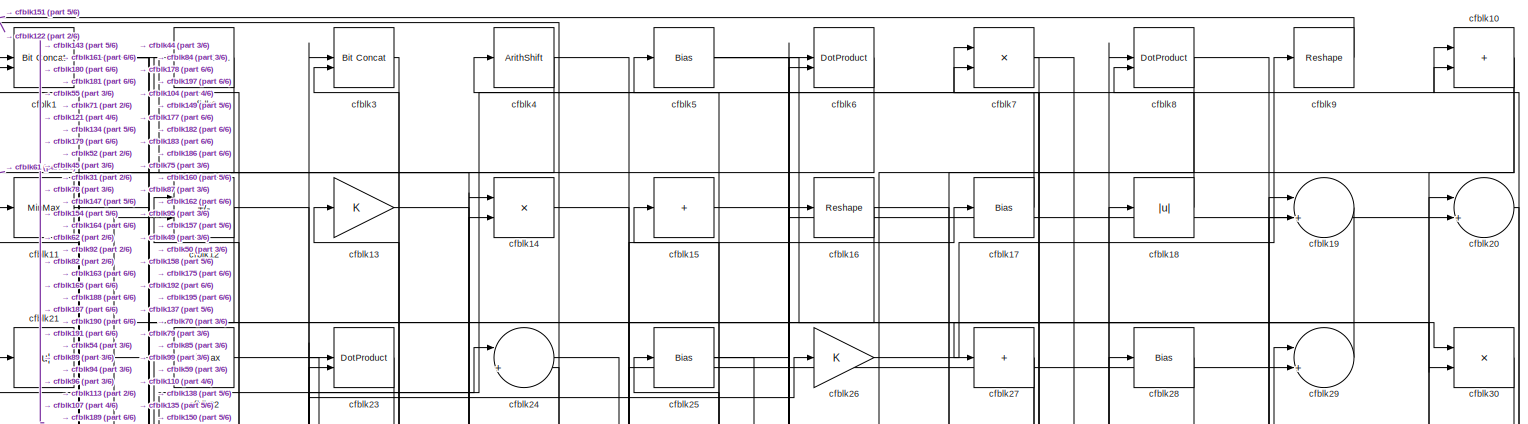
[diagram: root canvas - part 1/6, full width, top band]
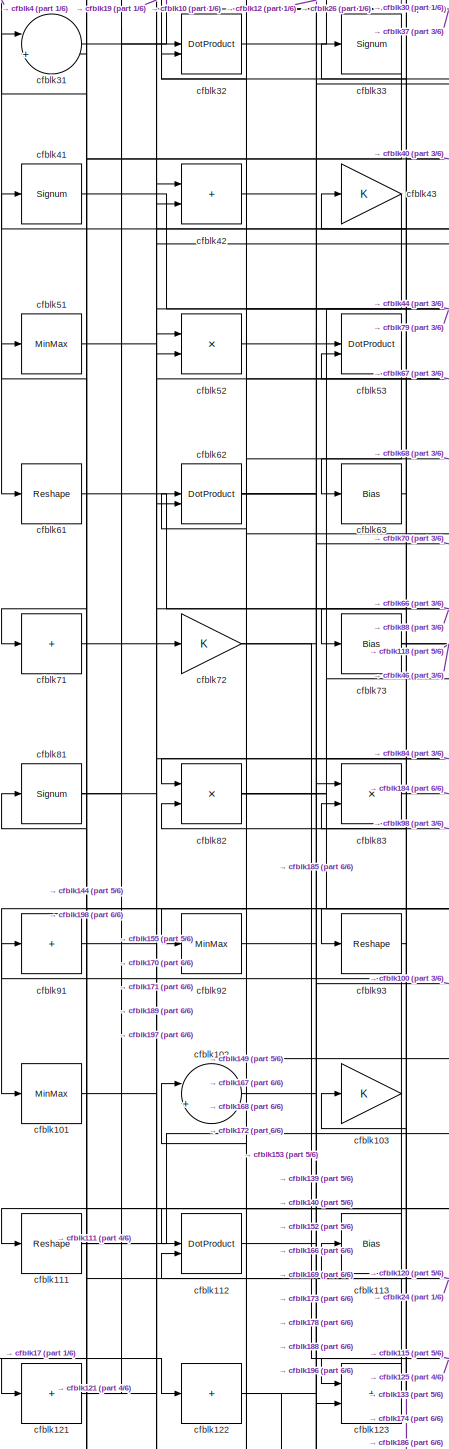
[diagram: root canvas - part 2/6, middle left region]
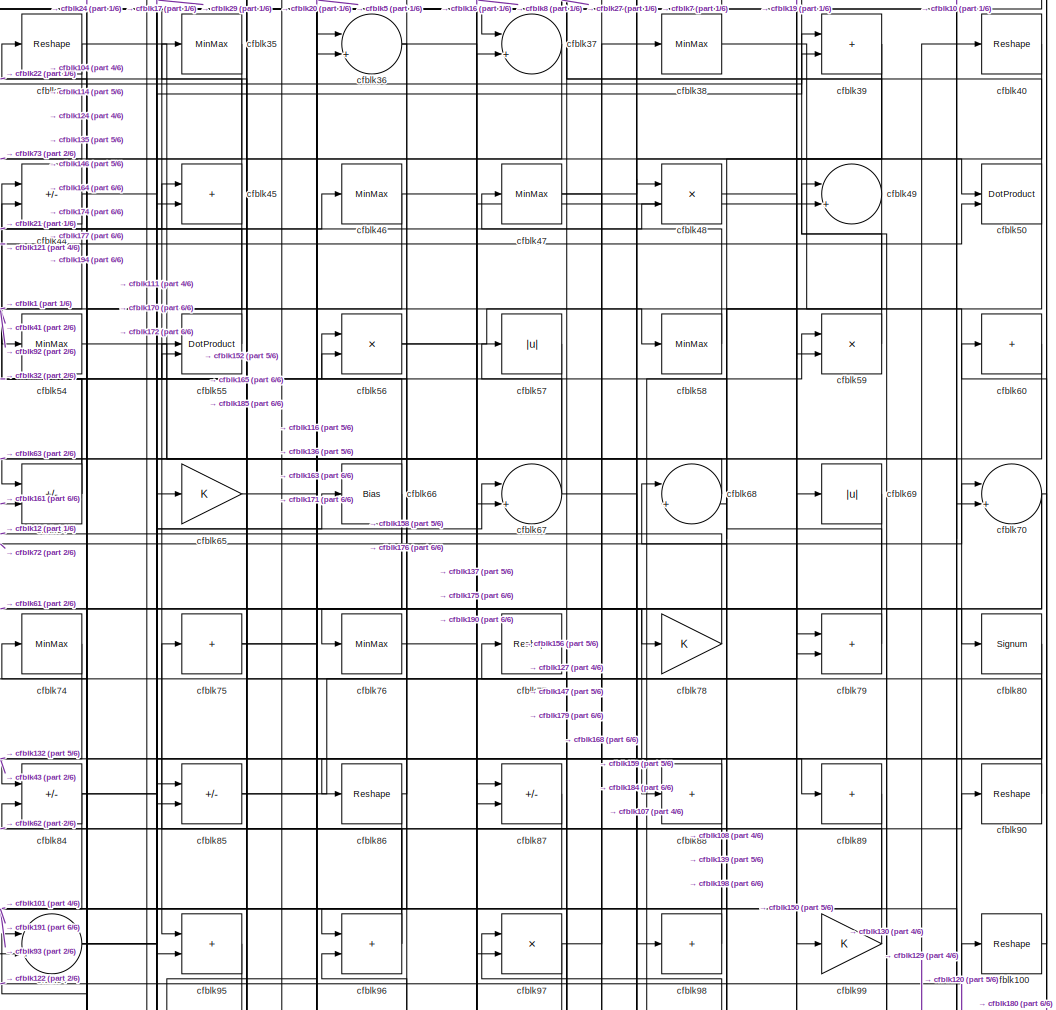
[diagram: root canvas - part 3/6, top center region]
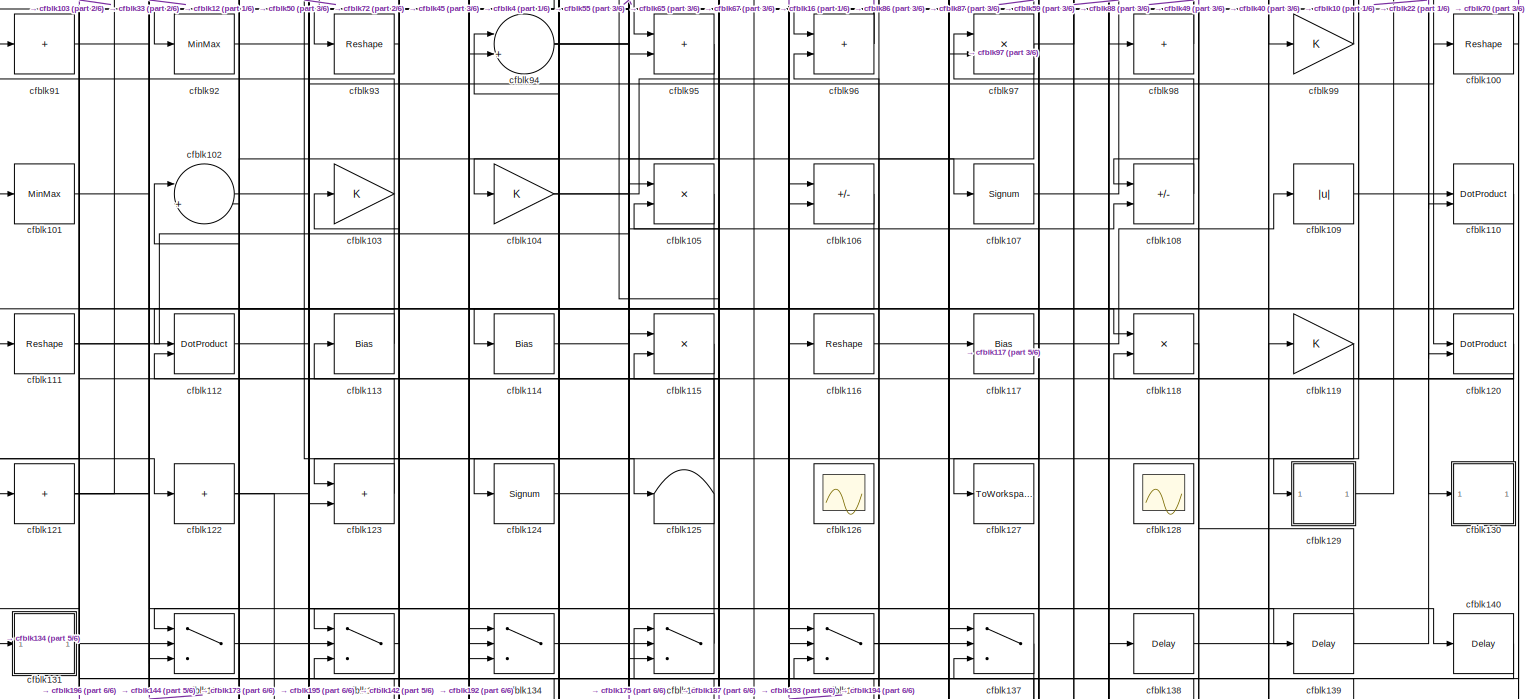
[diagram: root canvas - part 4/6, full width, middle band]
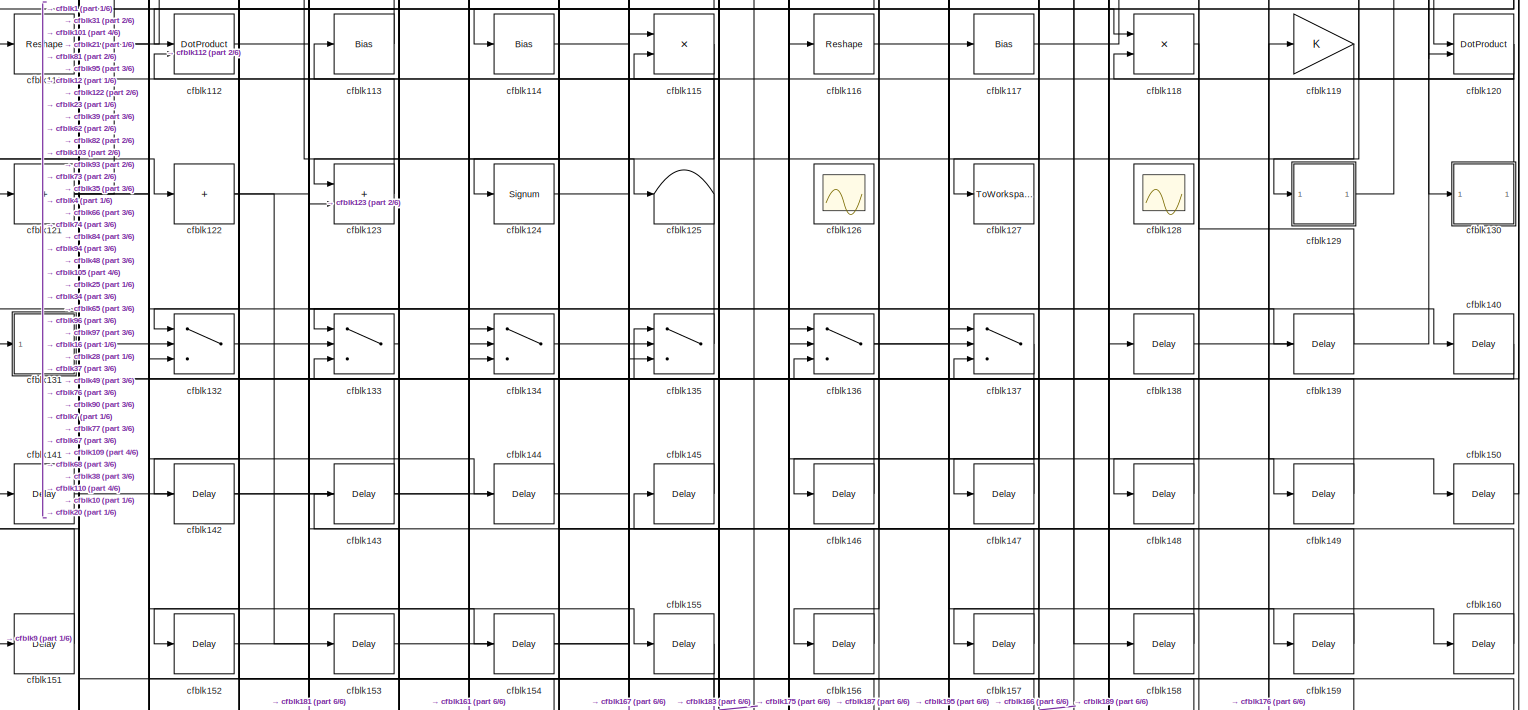
[diagram: root canvas - part 5/6, full width, bottom band]
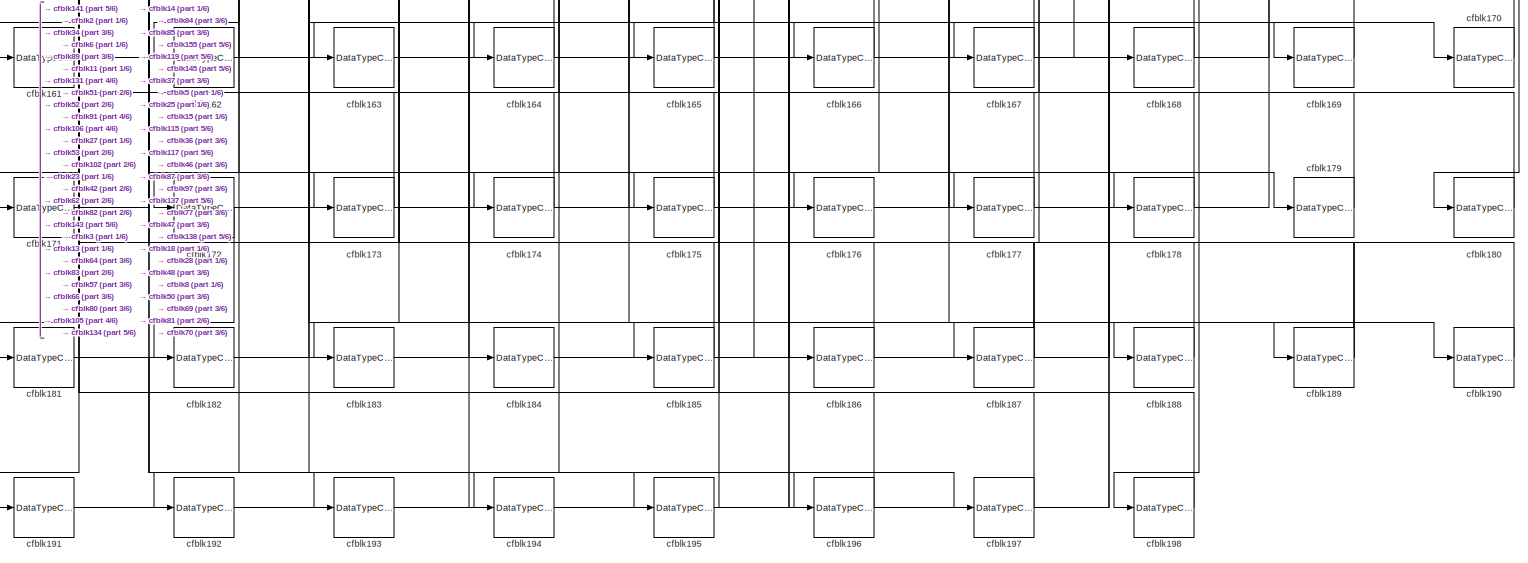
[diagram: root canvas - part 6/6, full width, bottom band]
MODEL slx_1a2bbc0f9b28
KIND model
CONFIG AbsTol = auto
CONFIG EnableMultiTasking = off
CONFIG FixedStep = auto
CONFIG MaxStep = auto
CONFIG MinStep = auto
CONFIG RelTol = 1e-3
CONFIG SampleTimeConstraint = Unconstrained
CONFIG SolverName = VariableStepAuto
CONFIG StartTime = 0.0
CONFIG StopTime = 10.0
BLOCK [Reference] cfblk1  REF=hdlsllib/Logic and Bit
Operations/Bit Concat
  SourceBlock = hdlsllib/Logic and Bit\nOperations/Bit Concat
  SourceType = Bit Concat
BLOCK [Sum] cfblk10
  IconShape = rectangular
BLOCK [Reshape] cfblk100
BLOCK [MinMax] cfblk101
BLOCK [Sum] cfblk102
  Inputs = |++
BLOCK [Gain] cfblk103
BLOCK [Gain] cfblk104
BLOCK [Product] cfblk105
  Inputs = */
  RndMeth = Zero
  SaturateOnIntegerOverflow = on
BLOCK [Sum] cfblk106
  IconShape = rectangular
  Inputs = +-
BLOCK [Signum] cfblk107
BLOCK [Sum] cfblk108
  IconShape = rectangular
  Inputs = +-
BLOCK [Abs] cfblk109
  SaturateOnIntegerOverflow = off
BLOCK [MinMax] cfblk11
BLOCK [DotProduct] cfblk110
  OutDataTypeStr = Inherit: Inherit via internal rule
BLOCK [Reshape] cfblk111
BLOCK [DotProduct] cfblk112
  OutDataTypeStr = Inherit: Inherit via internal rule
BLOCK [Bias] cfblk113
  Bias = 0.0
  SaturateOnIntegerOverflow = off
BLOCK [Bias] cfblk114
  Bias = 0.0
  SaturateOnIntegerOverflow = off
BLOCK [Product] cfblk115
  Inputs = */
  RndMeth = Zero
  SaturateOnIntegerOverflow = on
BLOCK [Reshape] cfblk116
BLOCK [Bias] cfblk117
  Bias = 0.0
  SaturateOnIntegerOverflow = off
BLOCK [Product] cfblk118
  Inputs = */
  RndMeth = Zero
  SaturateOnIntegerOverflow = on
BLOCK [Gain] cfblk119
BLOCK [Sum] cfblk12
  IconShape = rectangular
  Inputs = +-
BLOCK [DotProduct] cfblk120
  OutDataTypeStr = Inherit: Inherit via internal rule
BLOCK [Sum] cfblk121
  IconShape = rectangular
  Inputs = +
BLOCK [Sum] cfblk122
  IconShape = rectangular
  Inputs = +
BLOCK [Sum] cfblk123
  IconShape = rectangular
BLOCK [Signum] cfblk124
BLOCK [Terminator] cfblk125
BLOCK [Scope] cfblk126
  Floating = on
  NumInputPorts = 1
  ScopeSpecificationString = Simulink.scopes.TimeScopeBlockCfg('CurrentConfiguration', extmgr.ConfigurationSet(extmgr.Configuration('Core','General UI',true,'FigureColor',[0.156862745098039 0.156862745098039 0.156862745098039]),extmgr.Configuration('Core','Source UI',true),extmgr.Configuration('Sources','WiredSimulink',true,'DataLoggingVariableName','ScopeData1','DataLoggingSaveFormat','StructureWithTime','DataLoggingLimitDat...<+2713ch>
BLOCK [ToWorkspace] cfblk127
  MaxDataPoints = inf
  SampleTime = -1
  SaveFormat = Timeseries
  VariableName = simout
BLOCK [Scope] cfblk128
  Floating = on
  NumInputPorts = 1
  ScopeSpecificationString = Simulink.scopes.TimeScopeBlockCfg('CurrentConfiguration', extmgr.ConfigurationSet(extmgr.Configuration('Core','General UI',true,'FigureColor',[0.156862745098039 0.156862745098039 0.156862745098039]),extmgr.Configuration('Core','Source UI',true),extmgr.Configuration('Sources','WiredSimulink',true,'DataLoggingVariableName','ScopeData1','DataLoggingSaveFormat','StructureWithTime','DataLoggingLimitDat...<+2713ch>
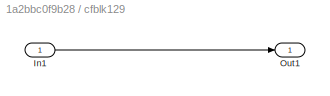
BLOCK [SubSystem] cfblk129
  LibrarySourceBlock = hdlsllib/Ports &\nSubsystems/Subsystem
BLOCK [Inport] cfblk129/In1
BLOCK [Outport] cfblk129/Out1
BLOCK [Gain] cfblk13
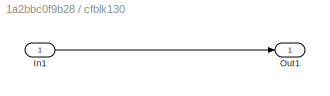
BLOCK [SubSystem] cfblk130
  LibrarySourceBlock = hdlsllib/Ports &\nSubsystems/Subsystem
BLOCK [Inport] cfblk130/In1
BLOCK [Outport] cfblk130/Out1
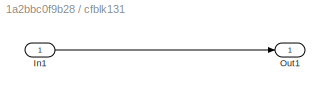
BLOCK [SubSystem] cfblk131
  LibrarySourceBlock = hdlsllib/Ports &\nSubsystems/Subsystem
BLOCK [Inport] cfblk131/In1
BLOCK [Outport] cfblk131/Out1
BLOCK [Switch] cfblk132
  InputSameDT = off
  SaturateOnIntegerOverflow = off
BLOCK [Switch] cfblk133
  InputSameDT = off
  SaturateOnIntegerOverflow = off
BLOCK [Switch] cfblk134
  InputSameDT = off
  SaturateOnIntegerOverflow = off
BLOCK [Switch] cfblk135
  InputSameDT = off
  SaturateOnIntegerOverflow = off
BLOCK [Switch] cfblk136
  InputSameDT = off
  SaturateOnIntegerOverflow = off
BLOCK [Switch] cfblk137
  InputSameDT = off
  SaturateOnIntegerOverflow = off
BLOCK [Delay] cfblk138
  InputPortMap = u0
  SampleTime = 1
BLOCK [Delay] cfblk139
  InputPortMap = u0
  SampleTime = 1
BLOCK [Product] cfblk14
  Inputs = */
  RndMeth = Zero
  SaturateOnIntegerOverflow = on
BLOCK [Delay] cfblk140
  InputPortMap = u0
  SampleTime = 1
BLOCK [Delay] cfblk141
  InputPortMap = u0
  SampleTime = 1
BLOCK [Delay] cfblk142
  InputPortMap = u0
  SampleTime = 1
BLOCK [Delay] cfblk143
  InputPortMap = u0
  SampleTime = 1
BLOCK [Delay] cfblk144
  InputPortMap = u0
  SampleTime = 1
BLOCK [Delay] cfblk145
  InputPortMap = u0
  SampleTime = 1
BLOCK [Delay] cfblk146
  InputPortMap = u0
  SampleTime = 1
BLOCK [Delay] cfblk147
  InputPortMap = u0
  SampleTime = 1
BLOCK [Delay] cfblk148
  InputPortMap = u0
  SampleTime = 1
BLOCK [Delay] cfblk149
  InputPortMap = u0
  SampleTime = 1
BLOCK [Sum] cfblk15
  IconShape = rectangular
  Inputs = +
BLOCK [Delay] cfblk150
  InputPortMap = u0
  SampleTime = 1
BLOCK [Delay] cfblk151
  InputPortMap = u0
  SampleTime = 1
BLOCK [Delay] cfblk152
  InputPortMap = u0
  SampleTime = 1
BLOCK [Delay] cfblk153
  InputPortMap = u0
  SampleTime = 1
BLOCK [Delay] cfblk154
  InputPortMap = u0
  SampleTime = 1
BLOCK [Delay] cfblk155
  InputPortMap = u0
  SampleTime = 1
BLOCK [Delay] cfblk156
  InputPortMap = u0
  SampleTime = 1
BLOCK [Delay] cfblk157
  InputPortMap = u0
  SampleTime = 1
BLOCK [Delay] cfblk158
  InputPortMap = u0
  SampleTime = 1
BLOCK [Delay] cfblk159
  InputPortMap = u0
  SampleTime = 1
BLOCK [Reshape] cfblk16
BLOCK [Delay] cfblk160
  InputPortMap = u0
  SampleTime = 1
BLOCK [DataTypeConversion] cfblk161
  RndMeth = Floor
  SaturateOnIntegerOverflow = off
BLOCK [DataTypeConversion] cfblk162
  OutDataTypeStr = uint8
  RndMeth = Floor
  SaturateOnIntegerOverflow = off
BLOCK [DataTypeConversion] cfblk163
  OutDataTypeStr = uint8
  RndMeth = Floor
  SaturateOnIntegerOverflow = off
BLOCK [DataTypeConversion] cfblk164
  OutDataTypeStr = uint8
  RndMeth = Floor
  SaturateOnIntegerOverflow = off
BLOCK [DataTypeConversion] cfblk165
  OutDataTypeStr = uint8
  RndMeth = Floor
  SaturateOnIntegerOverflow = off
BLOCK [DataTypeConversion] cfblk166
  OutDataTypeStr = uint8
  RndMeth = Floor
  SaturateOnIntegerOverflow = off
BLOCK [DataTypeConversion] cfblk167
  OutDataTypeStr = uint8
  RndMeth = Floor
  SaturateOnIntegerOverflow = off
BLOCK [DataTypeConversion] cfblk168
  OutDataTypeStr = uint8
  RndMeth = Floor
  SaturateOnIntegerOverflow = off
BLOCK [DataTypeConversion] cfblk169
  OutDataTypeStr = uint8
  RndMeth = Floor
  SaturateOnIntegerOverflow = off
BLOCK [Bias] cfblk17
  Bias = 0.0
  SaturateOnIntegerOverflow = off
BLOCK [DataTypeConversion] cfblk170
  OutDataTypeStr = uint8
  RndMeth = Floor
  SaturateOnIntegerOverflow = off
BLOCK [DataTypeConversion] cfblk171
  OutDataTypeStr = uint8
  RndMeth = Floor
  SaturateOnIntegerOverflow = off
BLOCK [DataTypeConversion] cfblk172
  RndMeth = Floor
  SaturateOnIntegerOverflow = off
BLOCK [DataTypeConversion] cfblk173
  OutDataTypeStr = uint8
  RndMeth = Floor
  SaturateOnIntegerOverflow = off
BLOCK [DataTypeConversion] cfblk174
  OutDataTypeStr = uint8
  RndMeth = Floor
  SaturateOnIntegerOverflow = off
BLOCK [DataTypeConversion] cfblk175
  RndMeth = Floor
  SaturateOnIntegerOverflow = off
BLOCK [DataTypeConversion] cfblk176
  OutDataTypeStr = uint8
  RndMeth = Floor
  SaturateOnIntegerOverflow = off
BLOCK [DataTypeConversion] cfblk177
  OutDataTypeStr = uint8
  RndMeth = Floor
  SaturateOnIntegerOverflow = off
BLOCK [DataTypeConversion] cfblk178
  OutDataTypeStr = uint8
  RndMeth = Floor
  SaturateOnIntegerOverflow = off
BLOCK [DataTypeConversion] cfblk179
  OutDataTypeStr = uint8
  RndMeth = Floor
  SaturateOnIntegerOverflow = off
BLOCK [Abs] cfblk18
  SaturateOnIntegerOverflow = off
BLOCK [DataTypeConversion] cfblk180
  OutDataTypeStr = uint8
  RndMeth = Floor
  SaturateOnIntegerOverflow = off
BLOCK [DataTypeConversion] cfblk181
  RndMeth = Floor
  SaturateOnIntegerOverflow = off
BLOCK [DataTypeConversion] cfblk182
  OutDataTypeStr = uint8
  RndMeth = Floor
  SaturateOnIntegerOverflow = off
BLOCK [DataTypeConversion] cfblk183
  OutDataTypeStr = uint8
  RndMeth = Floor
  SaturateOnIntegerOverflow = off
BLOCK [DataTypeConversion] cfblk184
  OutDataTypeStr = uint8
  RndMeth = Floor
  SaturateOnIntegerOverflow = off
BLOCK [DataTypeConversion] cfblk185
  OutDataTypeStr = uint8
  RndMeth = Floor
  SaturateOnIntegerOverflow = off
BLOCK [DataTypeConversion] cfblk186
  OutDataTypeStr = uint8
  RndMeth = Floor
  SaturateOnIntegerOverflow = off
BLOCK [DataTypeConversion] cfblk187
  RndMeth = Floor
  SaturateOnIntegerOverflow = off
BLOCK [DataTypeConversion] cfblk188
  OutDataTypeStr = uint8
  RndMeth = Floor
  SaturateOnIntegerOverflow = off
BLOCK [DataTypeConversion] cfblk189
  RndMeth = Floor
  SaturateOnIntegerOverflow = off
BLOCK [Sum] cfblk19
  Inputs = |++
BLOCK [DataTypeConversion] cfblk190
  OutDataTypeStr = uint8
  RndMeth = Floor
  SaturateOnIntegerOverflow = off
BLOCK [DataTypeConversion] cfblk191
  OutDataTypeStr = uint8
  RndMeth = Floor
  SaturateOnIntegerOverflow = off
BLOCK [DataTypeConversion] cfblk192
  OutDataTypeStr = uint8
  RndMeth = Floor
  SaturateOnIntegerOverflow = off
BLOCK [DataTypeConversion] cfblk193
  OutDataTypeStr = uint8
  RndMeth = Floor
  SaturateOnIntegerOverflow = off
BLOCK [DataTypeConversion] cfblk194
  OutDataTypeStr = uint8
  RndMeth = Floor
  SaturateOnIntegerOverflow = off
BLOCK [DataTypeConversion] cfblk195
  RndMeth = Floor
  SaturateOnIntegerOverflow = off
BLOCK [DataTypeConversion] cfblk196
  OutDataTypeStr = uint8
  RndMeth = Floor
  SaturateOnIntegerOverflow = off
BLOCK [DataTypeConversion] cfblk197
  OutDataTypeStr = uint8
  RndMeth = Floor
  SaturateOnIntegerOverflow = off
BLOCK [DataTypeConversion] cfblk198
  OutDataTypeStr = uint8
  RndMeth = Floor
  SaturateOnIntegerOverflow = off
BLOCK [Reference] cfblk2  REF=simulink/Logic and Bit
Operations/Detect
Decrease
  LibrarySourceBlock = hdlsllib/Logic and Bit\nOperations/Detect\nDecrease
  SourceBlock = simulink/Logic and Bit\nOperations/Detect\nDecrease
  SourceType = Detect Decrease
BLOCK [Sum] cfblk20
  Inputs = |++
BLOCK [Abs] cfblk21
  SaturateOnIntegerOverflow = off
BLOCK [MinMax] cfblk22
BLOCK [DotProduct] cfblk23
  OutDataTypeStr = Inherit: Inherit via internal rule
BLOCK [Sum] cfblk24
  Inputs = |++
BLOCK [Bias] cfblk25
  Bias = 0.0
  SaturateOnIntegerOverflow = off
BLOCK [Gain] cfblk26
BLOCK [Sum] cfblk27
  IconShape = rectangular
  Inputs = +
BLOCK [Bias] cfblk28
  Bias = 0.0
  SaturateOnIntegerOverflow = off
BLOCK [Sum] cfblk29
  Inputs = |++
BLOCK [Reference] cfblk3  REF=hdlsllib/Logic and Bit
Operations/Bit Concat
  SourceBlock = hdlsllib/Logic and Bit\nOperations/Bit Concat
  SourceType = Bit Concat
BLOCK [Product] cfblk30
  Inputs = */
  RndMeth = Zero
  SaturateOnIntegerOverflow = on
BLOCK [Sum] cfblk31
  Inputs = |++
BLOCK [DotProduct] cfblk32
  OutDataTypeStr = Inherit: Inherit via internal rule
BLOCK [Signum] cfblk33
BLOCK [Reshape] cfblk34
BLOCK [MinMax] cfblk35
BLOCK [Sum] cfblk36
  Inputs = |++
BLOCK [Sum] cfblk37
  Inputs = |++
BLOCK [MinMax] cfblk38
BLOCK [Sum] cfblk39
  IconShape = rectangular
BLOCK [ArithShift] cfblk4
  BitShiftNumber = 8
  InputPortMap = u0
BLOCK [Reshape] cfblk40
BLOCK [Signum] cfblk41
BLOCK [Sum] cfblk42
  IconShape = rectangular
BLOCK [Gain] cfblk43
BLOCK [Sum] cfblk44
  IconShape = rectangular
  Inputs = +-
BLOCK [Sum] cfblk45
  IconShape = rectangular
BLOCK [MinMax] cfblk46
BLOCK [MinMax] cfblk47
BLOCK [Product] cfblk48
  Inputs = */
  RndMeth = Zero
  SaturateOnIntegerOverflow = on
BLOCK [Sum] cfblk49
  Inputs = |++
BLOCK [Bias] cfblk5
  Bias = 0.0
  SaturateOnIntegerOverflow = off
BLOCK [DotProduct] cfblk50
  OutDataTypeStr = Inherit: Inherit via internal rule
BLOCK [MinMax] cfblk51
BLOCK [Product] cfblk52
  Inputs = */
  RndMeth = Zero
  SaturateOnIntegerOverflow = on
BLOCK [DotProduct] cfblk53
  OutDataTypeStr = Inherit: Inherit via internal rule
BLOCK [MinMax] cfblk54
BLOCK [DotProduct] cfblk55
  OutDataTypeStr = Inherit: Inherit via internal rule
BLOCK [Product] cfblk56
  Inputs = */
  RndMeth = Zero
  SaturateOnIntegerOverflow = on
BLOCK [Abs] cfblk57
  SaturateOnIntegerOverflow = off
BLOCK [MinMax] cfblk58
BLOCK [Product] cfblk59
  Inputs = */
  RndMeth = Zero
  SaturateOnIntegerOverflow = on
BLOCK [DotProduct] cfblk6
  OutDataTypeStr = Inherit: Inherit via internal rule
BLOCK [Sum] cfblk60
  IconShape = rectangular
  Inputs = +
BLOCK [Reshape] cfblk61
BLOCK [DotProduct] cfblk62
  OutDataTypeStr = Inherit: Inherit via internal rule
BLOCK [Bias] cfblk63
  Bias = 0.0
  SaturateOnIntegerOverflow = off
BLOCK [Sum] cfblk64
  IconShape = rectangular
  Inputs = +-
BLOCK [Gain] cfblk65
BLOCK [Bias] cfblk66
  Bias = 0.0
  SaturateOnIntegerOverflow = off
BLOCK [Sum] cfblk67
  Inputs = |++
BLOCK [Sum] cfblk68
  Inputs = |++
BLOCK [Abs] cfblk69
  SaturateOnIntegerOverflow = off
BLOCK [Product] cfblk7
  Inputs = */
  RndMeth = Zero
  SaturateOnIntegerOverflow = on
BLOCK [Sum] cfblk70
  Inputs = |++
BLOCK [Sum] cfblk71
  IconShape = rectangular
  Inputs = +
BLOCK [Gain] cfblk72
BLOCK [Bias] cfblk73
  Bias = 0.0
  SaturateOnIntegerOverflow = off
BLOCK [MinMax] cfblk74
BLOCK [Sum] cfblk75
  IconShape = rectangular
  Inputs = +
BLOCK [MinMax] cfblk76
BLOCK [Reshape] cfblk77
BLOCK [Gain] cfblk78
BLOCK [Sum] cfblk79
  IconShape = rectangular
BLOCK [DotProduct] cfblk8
  OutDataTypeStr = Inherit: Inherit via internal rule
BLOCK [Signum] cfblk80
BLOCK [Signum] cfblk81
BLOCK [Product] cfblk82
  Inputs = */
  RndMeth = Zero
  SaturateOnIntegerOverflow = on
BLOCK [Product] cfblk83
  Inputs = */
  RndMeth = Zero
  SaturateOnIntegerOverflow = on
BLOCK [Sum] cfblk84
  IconShape = rectangular
  Inputs = +-
BLOCK [Sum] cfblk85
  IconShape = rectangular
  Inputs = +-
BLOCK [Reshape] cfblk86
BLOCK [Sum] cfblk87
  IconShape = rectangular
  Inputs = +-
BLOCK [Sum] cfblk88
  IconShape = rectangular
  Inputs = +
BLOCK [Sum] cfblk89
  IconShape = rectangular
  Inputs = +
BLOCK [Reshape] cfblk9
BLOCK [Reshape] cfblk90
BLOCK [Sum] cfblk91
  IconShape = rectangular
  Inputs = +
BLOCK [MinMax] cfblk92
BLOCK [Reshape] cfblk93
BLOCK [Sum] cfblk94
  Inputs = |++
BLOCK [Sum] cfblk95
  IconShape = rectangular
BLOCK [Sum] cfblk96
  IconShape = rectangular
BLOCK [Product] cfblk97
  Inputs = */
  RndMeth = Zero
  SaturateOnIntegerOverflow = on
BLOCK [Sum] cfblk98
  IconShape = rectangular
  Inputs = +
BLOCK [Gain] cfblk99
LINE cfblk100:1 -> cfblk60:1
LINE cfblk101:1 -> cfblk144:1
LINE cfblk102:1 -> cfblk166:1
NET cfblk103:1 -> cfblk121:1, cfblk31:2
NET cfblk104:1 -> cfblk108:2, cfblk16:1
LINE cfblk105:1 -> cfblk142:1
LINE cfblk106:1 -> cfblk192:1
LINE cfblk107:1 -> cfblk59:1
LINE cfblk108:1 -> cfblk97:1
LINE cfblk109:1 -> cfblk130:1
NET cfblk10:1 -> cfblk110:2, cfblk96:1
NET cfblk110:1 -> cfblk131:1, cfblk134:3
NET cfblk111:1 -> cfblk55:2, cfblk65:1
LINE cfblk112:1 -> cfblk140:1
LINE cfblk113:1 -> cfblk112:1
LINE cfblk114:1 -> cfblk48:2
LINE cfblk115:1 -> cfblk123:1
LINE cfblk116:1 -> cfblk37:2
LINE cfblk117:1 -> cfblk109:1
LINE cfblk118:1 -> cfblk148:1
LINE cfblk119:1 -> cfblk175:1
LINE cfblk11:1 -> cfblk179:1
NET cfblk120:1 -> cfblk112:2, cfblk118:2
NET cfblk121:1 -> cfblk12:2, cfblk45:1, cfblk50:2
NET cfblk122:1 -> cfblk100:1, cfblk153:1
LINE cfblk123:1 -> cfblk41:1
LINE cfblk124:1 -> cfblk67:1
LINE cfblk129/In1:1 -> cfblk129/Out1:1
LINE cfblk129:1 -> cfblk40:1
NET cfblk12:1 -> cfblk154:1, cfblk71:1
LINE cfblk130/In1:1 -> cfblk130/Out1:1
LINE cfblk130:1 -> cfblk49:1
LINE cfblk131/In1:1 -> cfblk131/Out1:1
LINE cfblk131:1 -> cfblk173:1
LINE cfblk132:1 -> cfblk39:1
LINE cfblk133:1 -> cfblk103:1
LINE cfblk134:1 -> cfblk167:1
LINE cfblk135:1 -> cfblk74:1
NET cfblk136:1 -> cfblk49:2, cfblk90:1
LINE cfblk137:1 -> cfblk146:1
LINE cfblk138:1 -> cfblk20:1
LINE cfblk139:1 -> cfblk68:1
LINE cfblk13:1 -> cfblk187:1
LINE cfblk140:1 -> cfblk136:3
LINE cfblk141:1 -> cfblk115:1
LINE cfblk142:1 -> cfblk134:1
LINE cfblk143:1 -> cfblk1:2
LINE cfblk144:1 -> cfblk31:1
LINE cfblk145:1 -> cfblk132:2
LINE cfblk146:1 -> cfblk94:1
LINE cfblk147:1 -> cfblk23:1
LINE cfblk148:1 -> cfblk133:3
LINE cfblk149:1 -> cfblk82:2
LINE cfblk14:1 -> cfblk189:1
LINE cfblk150:1 -> cfblk10:2
LINE cfblk151:1 -> cfblk1:1
LINE cfblk152:1 -> cfblk123:2
LINE cfblk153:1 -> cfblk135:3
LINE cfblk154:1 -> cfblk135:2
LINE cfblk155:1 -> cfblk183:1
LINE cfblk156:1 -> cfblk133:2
LINE cfblk157:1 -> cfblk136:2
LINE cfblk158:1 -> cfblk96:2
LINE cfblk159:1 -> cfblk84:2
LINE cfblk15:1 -> cfblk177:1
LINE cfblk160:1 -> cfblk4:1
NET cfblk161:1 -> cfblk117:1, cfblk64:2, cfblk69:1
LINE cfblk162:1 -> cfblk2:1
LINE cfblk163:1 -> cfblk36:1
LINE cfblk164:1 -> cfblk3:1
LINE cfblk165:1 -> cfblk3:2
LINE cfblk166:1 -> cfblk115:2
LINE cfblk167:1 -> cfblk102:1
LINE cfblk168:1 -> cfblk102:2
LINE cfblk169:1 -> cfblk81:1
NET cfblk16:1 -> cfblk160:1, cfblk45:2
LINE cfblk170:1 -> cfblk42:1
LINE cfblk171:1 -> cfblk42:2
NET cfblk172:1 -> cfblk182:1, cfblk85:1, cfblk97:2
LINE cfblk173:1 -> cfblk53:1
LINE cfblk174:1 -> cfblk53:2
NET cfblk175:1 -> cfblk105:1, cfblk28:1, cfblk87:1
LINE cfblk176:1 -> cfblk119:1
LINE cfblk177:1 -> cfblk34:1
LINE cfblk178:1 -> cfblk15:1
LINE cfblk179:1 -> cfblk77:1
LINE cfblk17:1 -> cfblk122:1
LINE cfblk180:1 -> cfblk11:1
NET cfblk181:1 -> cfblk138:1, cfblk193:1, cfblk23:2
LINE cfblk182:1 -> cfblk6:1
LINE cfblk183:1 -> cfblk6:2
LINE cfblk184:1 -> cfblk48:1
LINE cfblk185:1 -> cfblk83:1
LINE cfblk186:1 -> cfblk83:2
NET cfblk187:1 -> cfblk105:2, cfblk141:1, cfblk143:1
LINE cfblk188:1 -> cfblk13:1
NET cfblk189:1 -> cfblk137:3, cfblk25:1, cfblk52:1
LINE cfblk18:1 -> cfblk8:2
LINE cfblk190:1 -> cfblk14:1
LINE cfblk191:1 -> cfblk14:2
LINE cfblk192:1 -> cfblk8:1
LINE cfblk193:1 -> cfblk106:1
LINE cfblk194:1 -> cfblk106:2
NET cfblk195:1 -> cfblk145:1, cfblk18:1
LINE cfblk196:1 -> cfblk91:1
LINE cfblk197:1 -> cfblk5:1
LINE cfblk198:1 -> cfblk51:1
LINE cfblk19:1 -> cfblk52:2
NET cfblk1:1 -> cfblk30:2, cfblk54:1, cfblk89:1, cfblk94:2
LINE cfblk20:1 -> cfblk135:1
LINE cfblk21:1 -> cfblk134:2
LINE cfblk22:1 -> cfblk110:1
LINE cfblk23:1 -> cfblk82:1
LINE cfblk24:1 -> cfblk113:1
NET cfblk25:1 -> cfblk149:1, cfblk186:1
LINE cfblk26:1 -> cfblk9:1
NET cfblk27:1 -> cfblk162:1, cfblk95:1
LINE cfblk28:1 -> cfblk137:2
LINE cfblk29:1 -> cfblk27:1
LINE cfblk2:1 -> cfblk161:1
LINE cfblk30:1 -> cfblk62:2
LINE cfblk31:1 -> cfblk10:1
LINE cfblk32:1 -> cfblk37:1
LINE cfblk33:1 -> cfblk111:1
NET cfblk34:1 -> cfblk116:1, cfblk171:1
LINE cfblk35:1 -> cfblk114:1
NET cfblk36:1 -> cfblk176:1, cfblk78:1
LINE cfblk37:1 -> cfblk165:1
LINE cfblk38:1 -> cfblk120:1
NET cfblk39:1 -> cfblk59:2, cfblk68:2
LINE cfblk3:1 -> cfblk163:1
LINE cfblk40:1 -> cfblk73:1
LINE cfblk41:1 -> cfblk79:1
LINE cfblk42:1 -> cfblk169:1
LINE cfblk43:1 -> cfblk84:1
NET cfblk44:1 -> cfblk17:1, cfblk92:1
NET cfblk45:1 -> cfblk124:1, cfblk22:1
NET cfblk46:1 -> cfblk190:1, cfblk64:1
NET cfblk47:1 -> cfblk168:1, cfblk50:1
LINE cfblk48:1 -> cfblk150:1
NET cfblk49:1 -> cfblk108:1, cfblk7:1
NET cfblk4:1 -> cfblk107:1, cfblk61:1
NET cfblk50:1 -> cfblk198:1, cfblk7:2
LINE cfblk51:1 -> cfblk197:1
LINE cfblk52:1 -> cfblk196:1
LINE cfblk53:1 -> cfblk172:1
LINE cfblk54:1 -> cfblk98:1
LINE cfblk55:1 -> cfblk21:1
NET cfblk56:1 -> cfblk58:1, cfblk67:2
LINE cfblk57:1 -> cfblk174:1
LINE cfblk58:1 -> cfblk47:1
LINE cfblk59:1 -> cfblk29:1
NET cfblk5:1 -> cfblk70:2, cfblk79:2, cfblk99:1
LINE cfblk60:1 -> cfblk95:2
LINE cfblk61:1 -> cfblk88:1
NET cfblk62:1 -> cfblk139:1, cfblk188:1, cfblk24:1
LINE cfblk63:1 -> cfblk33:1
NET cfblk64:1 -> cfblk44:1, cfblk44:2
LINE cfblk65:1 -> cfblk136:1
NET cfblk66:1 -> cfblk132:3, cfblk194:1, cfblk43:1
NET cfblk67:1 -> cfblk159:1, cfblk32:2
LINE cfblk68:1 -> cfblk63:1
LINE cfblk69:1 -> cfblk76:1
LINE cfblk6:1 -> cfblk181:1
NET cfblk70:1 -> cfblk129:1, cfblk180:1, cfblk185:1
LINE cfblk71:1 -> cfblk72:1
NET cfblk72:1 -> cfblk125:1, cfblk70:1
NET cfblk73:1 -> cfblk118:1, cfblk46:1
LINE cfblk74:1 -> cfblk132:1
NET cfblk75:1 -> cfblk20:2, cfblk80:1
LINE cfblk76:1 -> cfblk137:1
LINE cfblk77:1 -> cfblk147:1
LINE cfblk78:1 -> cfblk12:1
LINE cfblk79:1 -> cfblk57:1
NET cfblk7:1 -> cfblk157:1, cfblk158:1
NET cfblk80:1 -> cfblk164:1, cfblk85:2
NET cfblk81:1 -> cfblk155:1, cfblk32:1
NET cfblk82:1 -> cfblk120:2, cfblk178:1, cfblk19:1
LINE cfblk83:1 -> cfblk184:1
NET cfblk84:1 -> cfblk170:1, cfblk29:2, cfblk93:1
NET cfblk85:1 -> cfblk19:2, cfblk36:2
NET cfblk86:1 -> cfblk104:1, cfblk56:1
LINE cfblk87:1 -> cfblk101:1
NET cfblk88:1 -> cfblk127:1, cfblk86:1
LINE cfblk89:1 -> cfblk191:1
NET cfblk8:1 -> cfblk30:1, cfblk87:2
LINE cfblk90:1 -> cfblk55:1
LINE cfblk91:1 -> cfblk195:1
LINE cfblk92:1 -> cfblk26:1
LINE cfblk93:1 -> cfblk133:1
NET cfblk94:1 -> cfblk39:2, cfblk56:2, cfblk66:1
LINE cfblk95:1 -> cfblk152:1
NET cfblk96:1 -> cfblk24:2, cfblk75:1
NET cfblk97:1 -> cfblk156:1, cfblk38:1
LINE cfblk98:1 -> cfblk62:1
LINE cfblk99:1 -> cfblk35:1
LINE cfblk9:1 -> cfblk151:1
note: NET lines group one-source signal fan-out (src -> all destinations, sorted); 1:1 wires keep LINE
